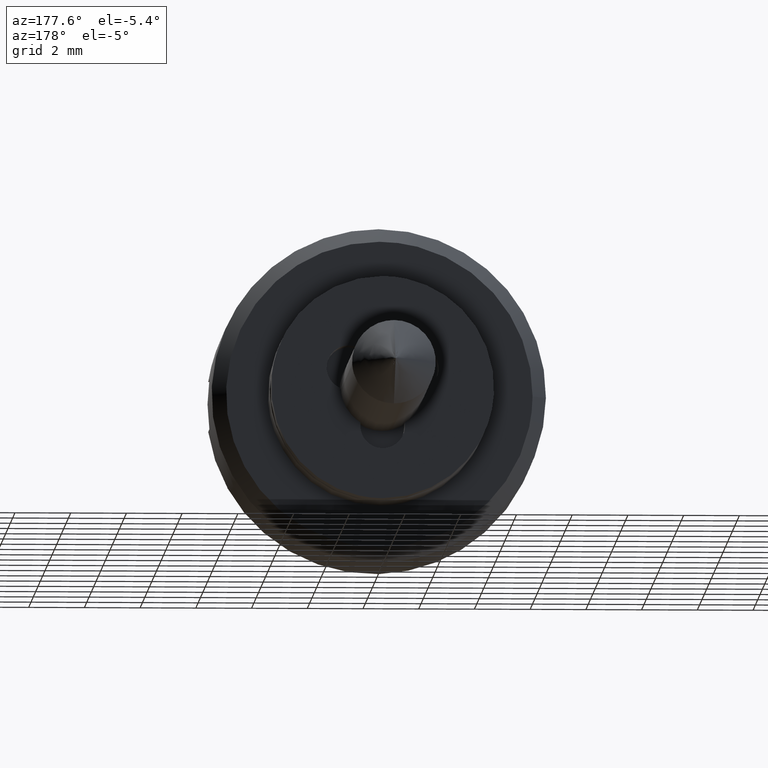
[diagram: clean part render]
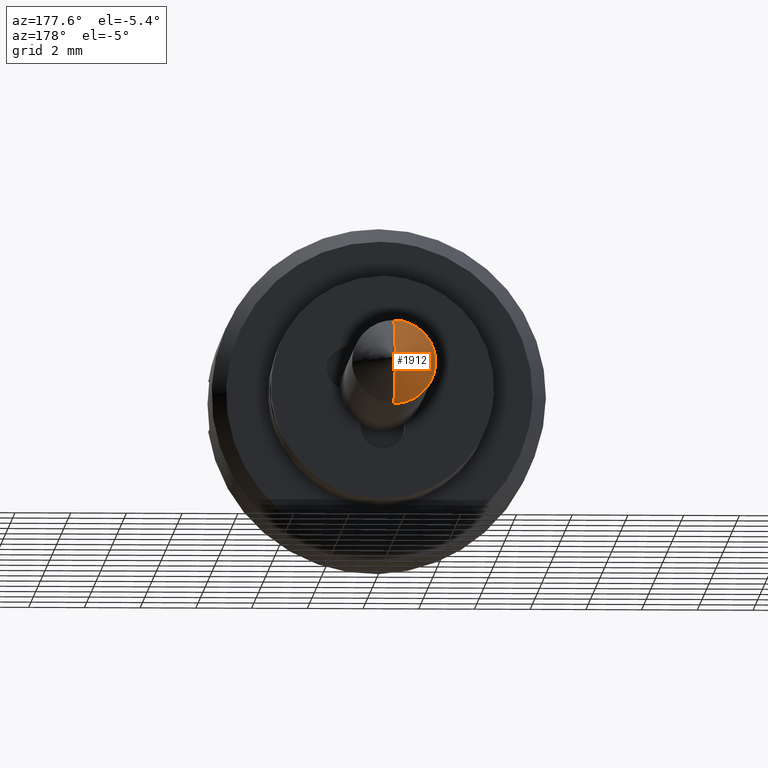
[diagram: same view with one face highlighted and labeled with its STEP entity id]
A machine part, auxiliary view. The second image highlights one B-rep face of the part: STEP entity #1912.
In plain terms, the highlighted face is a freeform B-spline surface patch.
Its self-contained STEP definition (entity closure, byte-faithful):
#859=CARTESIAN_POINT('',(10.499999999999989,1.489514594881441,0.177048783188370));
#860=VERTEX_POINT('',#859);
#861=CARTESIAN_POINT('',(10.500000000000011,0.0,-1.500000000000009));
#862=VERTEX_POINT('',#861);
#863=CARTESIAN_POINT('',(10.499999999999988,1.489514594881441,0.177048783188370));
#864=CARTESIAN_POINT('',(10.500000000000002,1.500000000000000,0.088834881501318));
#865=CARTESIAN_POINT('',(10.500000000000000,1.500000000000000,0.0));
#866=CARTESIAN_POINT('',(10.500000000000002,1.500000000000000,-1.500000000000000));
#867=CARTESIAN_POINT('',(10.500000000000000,0.0,-1.500000000000000));
#875=(BOUNDED_CURVE()B_SPLINE_CURVE(2,(#863,#864,#865,#866,#867),.UNSPECIFIED.,.F.,.U.)B_SPLINE_CURVE_WITH_KNOTS((3,2,3),(0.459125529952911,0.500000000000000,1.0),.UNSPECIFIED.)CURVE()GEOMETRIC_REPRESENTATION_ITEM()RATIONAL_B_SPLINE_CURVE((0.956027325463800,0.976056289801228,1.0,0.707106781186548,1.0))REPRESENTATION_ITEM(''));
#876=EDGE_CURVE('',#860,#862,#875,.T.);
#962=CARTESIAN_POINT('',(10.500000000000011,0.0,1.500000000000009));
#963=VERTEX_POINT('',#962);
#964=CARTESIAN_POINT('',(10.500000000000000,0.0,1.500000000000000));
#965=CARTESIAN_POINT('',(10.500000000000000,1.332264102703908,1.500000000000000));
#966=CARTESIAN_POINT('',(10.499999999999988,1.489514594881441,0.177048783188370));
#974=(BOUNDED_CURVE()B_SPLINE_CURVE(2,(#964,#965,#966),.UNSPECIFIED.,.F.,.U.)B_SPLINE_CURVE_WITH_KNOTS((3,3),(0.0,0.459125529952911),.UNSPECIFIED.)CURVE()GEOMETRIC_REPRESENTATION_ITEM()RATIONAL_B_SPLINE_CURVE((1.0,0.731050491385319,0.956027325463800))REPRESENTATION_ITEM(''));
#975=EDGE_CURVE('',#963,#860,#974,.T.);
#1783=CARTESIAN_POINT('',(12.0,0.0,0.0));
#1784=VERTEX_POINT('',#1783);
#1785=CARTESIAN_POINT('',(12.0,0.0,0.0));
#1786=CARTESIAN_POINT('',(10.500000000000011,0.0,1.500000000000009));
#1787=QUASI_UNIFORM_CURVE('',1,(#1785,#1786),.UNSPECIFIED.,.F.,.U.);
#1788=EDGE_CURVE('',#1784,#963,#1787,.T.);
#1792=CARTESIAN_POINT('',(12.0,0.0,0.0));
#1793=CARTESIAN_POINT('',(10.500000000000011,0.0,-1.500000000000009));
#1794=QUASI_UNIFORM_CURVE('',1,(#1792,#1793),.UNSPECIFIED.,.F.,.U.);
#1795=EDGE_CURVE('',#1784,#862,#1794,.T.);
#1888=CARTESIAN_POINT('',(12.0,0.0,0.0));
#1889=CARTESIAN_POINT('',(10.461562499999999,-0.013425229455779,-1.538378921014096));
#1890=CARTESIAN_POINT('',(12.000000000000002,0.0,0.0));
#1891=CARTESIAN_POINT('',(10.461562499999998,1.579612777350746,-1.552281153085149));
#1892=CARTESIAN_POINT('',(12.0,0.0,0.0));
#1893=CARTESIAN_POINT('',(10.461562499999999,1.537910315892144,0.040271598912396));
#1894=CARTESIAN_POINT('',(12.000000000000002,0.0,0.0));
#1895=CARTESIAN_POINT('',(10.461562499999998,1.496207854433543,1.632824350909941));
#1896=CARTESIAN_POINT('',(12.0,0.0,0.0));
#1897=CARTESIAN_POINT('',(10.461562499999999,-0.093919362540660,1.535568003947201));
#1905=(BOUNDED_SURFACE()B_SPLINE_SURFACE(1,2,((#1888,#1890,#1892,#1894,#1896),(#1889,#1891,#1893,#1895,#1897)),.UNSPECIFIED.,.F.,.F.,.U.)B_SPLINE_SURFACE_WITH_KNOTS((2,2),(3,2,3),(0.0,1.0),(0.0,1.0,2.0),.UNSPECIFIED.)GEOMETRIC_REPRESENTATION_ITEM()RATIONAL_B_SPLINE_SURFACE(((1.0,0.694658370458997,1.0,0.694658370458997,1.0),(1.0,0.694658370458997,1.0,0.694658370458997,1.0)))REPRESENTATION_ITEM('')SURFACE());
#1906=ORIENTED_EDGE('',*,*,#1795,.T.);
#1907=ORIENTED_EDGE('',*,*,#876,.F.);
#1908=ORIENTED_EDGE('',*,*,#975,.F.);
#1909=ORIENTED_EDGE('',*,*,#1788,.F.);
#1910=EDGE_LOOP('',(#1906,#1907,#1908,#1909));
#1911=FACE_OUTER_BOUND('',#1910,.T.);
#1912=ADVANCED_FACE('',(#1911),#1905,.T.);